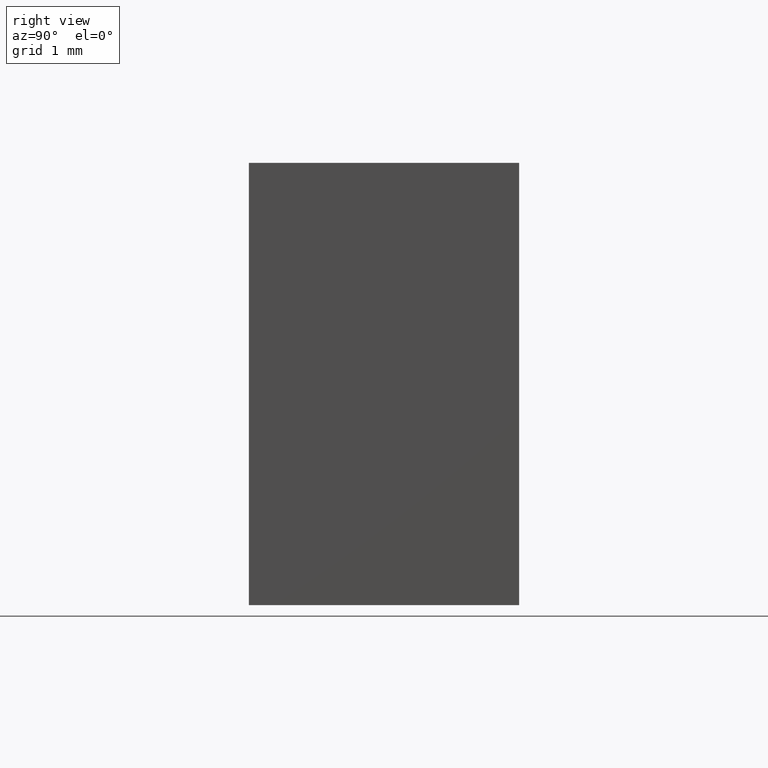
[diagram: clean part render]
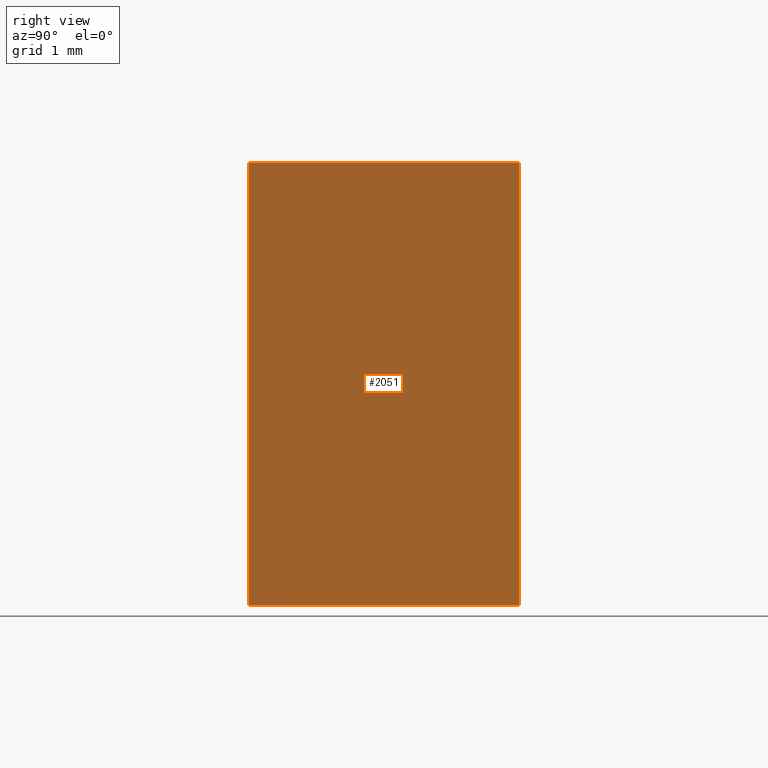
[diagram: same view with one face highlighted and labeled with its STEP entity id]
A machine part, right view. The second image highlights one B-rep face of the part: STEP entity #2051.
In plain terms, the highlighted planar face has unit normal (1, 0, -0).
Its self-contained STEP definition (entity closure, byte-faithful):
#16 = ORIENTED_EDGE ( 'NONE', *, *, #1712, .F. ) ;
#22 = CARTESIAN_POINT ( 'NONE',  ( 6.290000000000000036, -0.01000000000000000194, 0.01000000000000024307 ) ) ;
#89 = VERTEX_POINT ( 'NONE', #1746 ) ;
#246 = DIRECTION ( 'NONE',  ( 0.000000000000000000, -8.031127203596329369E-17, -1.000000000000000000 ) ) ;
#346 = PLANE ( 'NONE',  #1826 ) ;
#399 = DIRECTION ( 'NONE',  ( 0.000000000000000000, -1.000000000000000000, 0.000000000000000000 ) ) ;
#409 = VERTEX_POINT ( 'NONE', #1464 ) ;
#507 = VERTEX_POINT ( 'NONE', #22 ) ;
#511 = DIRECTION ( 'NONE',  ( 0.000000000000000000, -3.137159063904815678E-19, 1.000000000000000000 ) ) ;
#536 = CARTESIAN_POINT ( 'NONE',  ( 6.290000000000000036, 0.000000000000000000, 0.000000000000000000 ) ) ;
#541 = LINE ( 'NONE', #1731, #808 ) ;
#590 = CARTESIAN_POINT ( 'NONE',  ( 6.290000000000000036, 3.289999999999999591, -5.390000000000000568 ) ) ;
#808 = VECTOR ( 'NONE', #1900, 1000.000000000000000 ) ;
#819 = EDGE_CURVE ( 'NONE', #409, #1522, #1137, .T. ) ;
#969 = VECTOR ( 'NONE', #399, 1000.000000000000000 ) ;
#1119 = LINE ( 'NONE', #1679, #1415 ) ;
#1137 = LINE ( 'NONE', #590, #969 ) ;
#1142 = ORIENTED_EDGE ( 'NONE', *, *, #2422, .F. ) ;
#1203 = LINE ( 'NONE', #1428, #1653 ) ;
#1240 = CARTESIAN_POINT ( 'NONE',  ( 6.290000000000000036, -0.01000000000000000021, -5.390000000000000568 ) ) ;
#1415 = VECTOR ( 'NONE', #511, 1000.000000000000000 ) ;
#1428 = CARTESIAN_POINT ( 'NONE',  ( 6.290000000000000036, 3.289999999999999591, -5.390000000000000568 ) ) ;
#1464 = CARTESIAN_POINT ( 'NONE',  ( 6.290000000000000036, 3.289999999999999591, -5.390000000000000568 ) ) ;
#1472 = ORIENTED_EDGE ( 'NONE', *, *, #2177, .F. ) ;
#1522 = VERTEX_POINT ( 'NONE', #1240 ) ;
#1653 = VECTOR ( 'NONE', #246, 1000.000000000000000 ) ;
#1679 = CARTESIAN_POINT ( 'NONE',  ( 6.290000000000000036, -0.01000000000000000021, -5.390000000000000568 ) ) ;
#1712 = EDGE_CURVE ( 'NONE', #1522, #507, #1119, .T. ) ;
#1731 = CARTESIAN_POINT ( 'NONE',  ( 6.290000000000000036, 3.290000000000000036, 0.01000000000000000021 ) ) ;
#1746 = CARTESIAN_POINT ( 'NONE',  ( 6.290000000000000036, 3.290000000000000036, 0.01000000000000000021 ) ) ;
#1759 = ORIENTED_EDGE ( 'NONE', *, *, #819, .F. ) ;
#1826 = AXIS2_PLACEMENT_3D ( 'NONE', #536, #1892, #2499 ) ;
#1892 = DIRECTION ( 'NONE',  ( 1.000000000000000000, 0.000000000000000000, -0.000000000000000000 ) ) ;
#1900 = DIRECTION ( 'NONE',  ( 0.000000000000000000, 1.000000000000000000, -7.340952209537270016E-17 ) ) ;
#2051 = ADVANCED_FACE ( 'NONE', ( #2088 ), #346, .T. ) ;
#2088 = FACE_OUTER_BOUND ( 'NONE', #2345, .T. ) ;
#2177 = EDGE_CURVE ( 'NONE', #89, #409, #1203, .T. ) ;
#2345 = EDGE_LOOP ( 'NONE', ( #1759, #1472, #1142, #16 ) ) ;
#2422 = EDGE_CURVE ( 'NONE', #507, #89, #541, .T. ) ;
#2499 = DIRECTION ( 'NONE',  ( 0.000000000000000000, 0.000000000000000000, 1.000000000000000000 ) ) ;